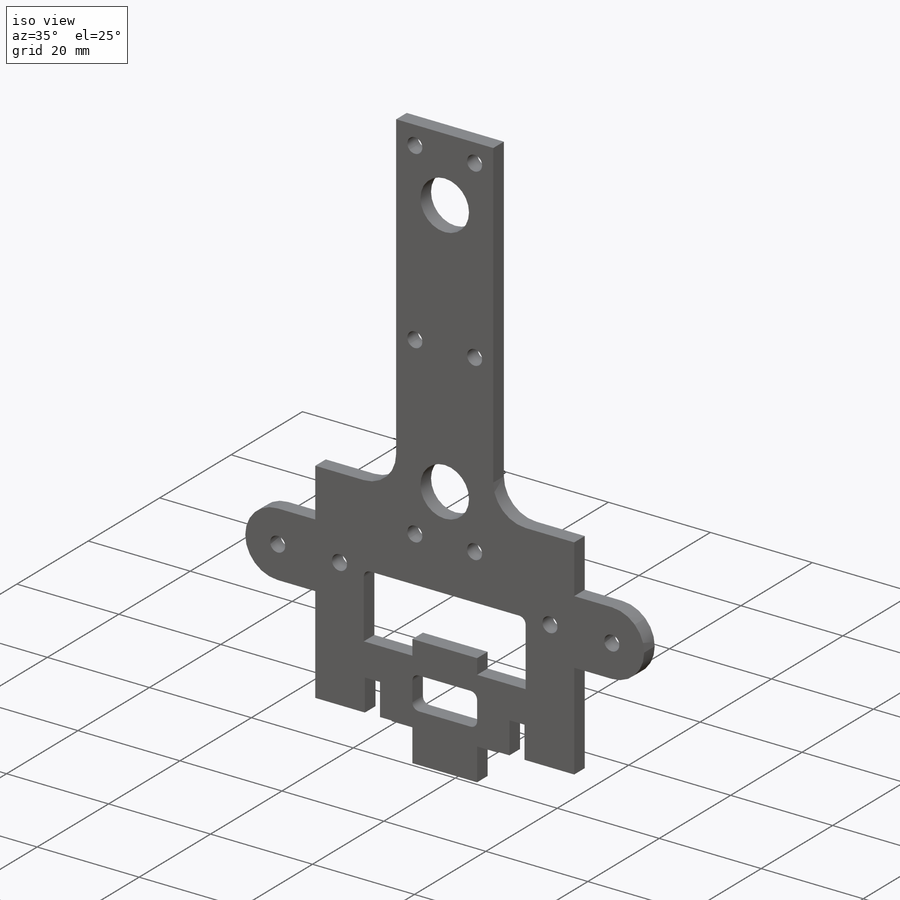
[diagram: iso view]
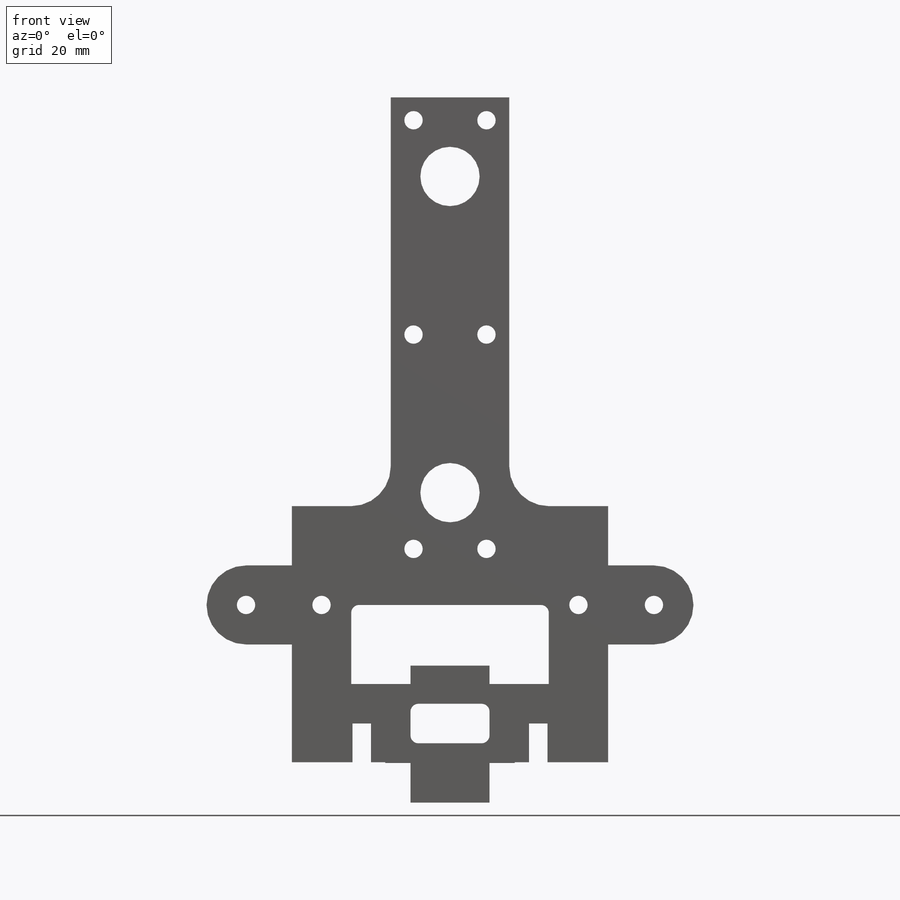
[diagram: front view]
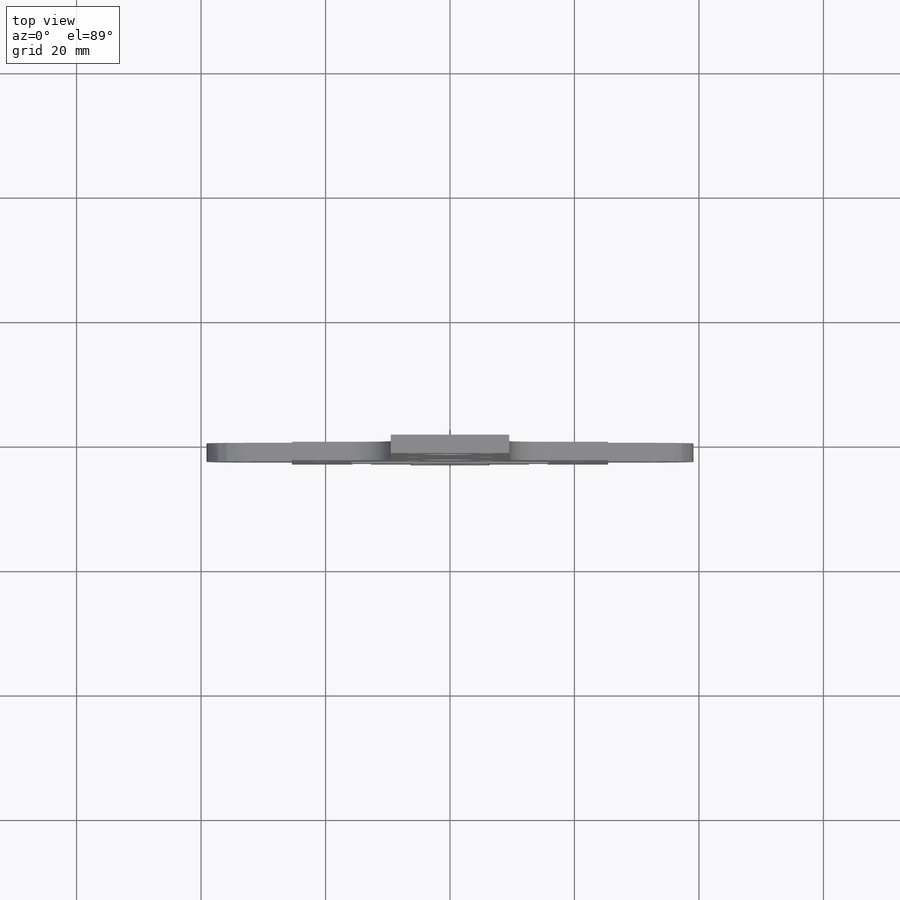
[diagram: top view]
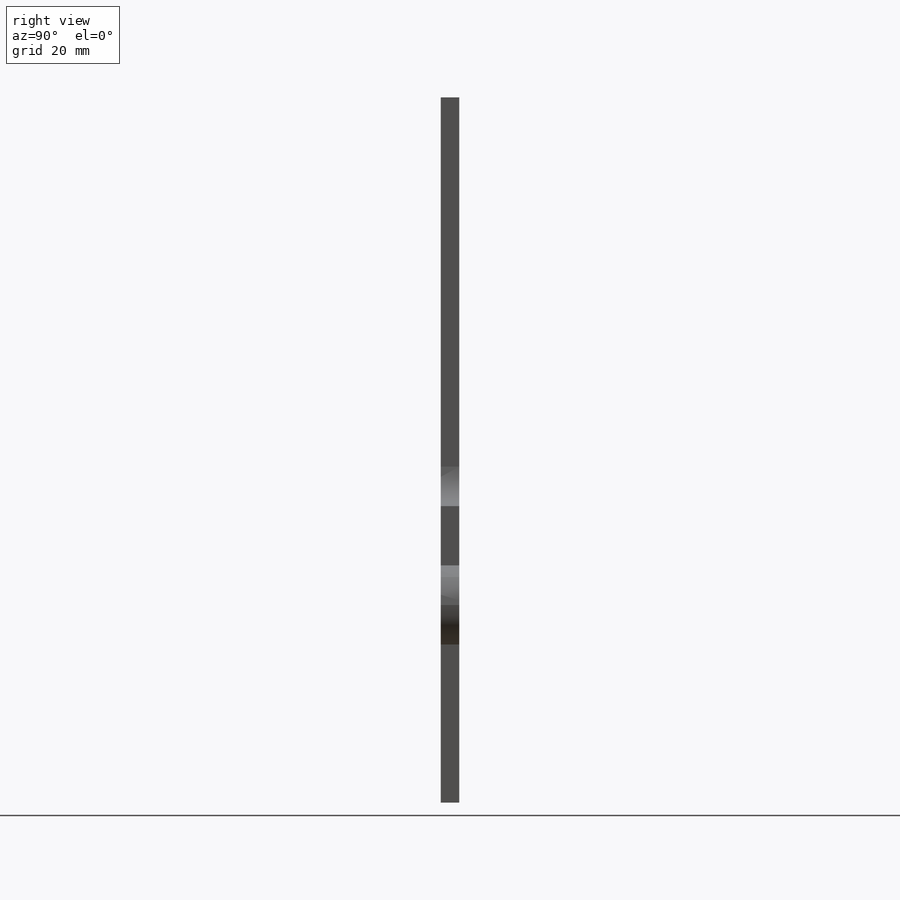
[diagram: right view]
SOLIDWORKS PART (.sldprt)
format: sldprt  version: not decoded by parser v0  size: 1,074,688 bytes
history: native  units: mm
features: sketch x18, cut_extrude x4, mirror x4, hole x4, extrude x3, fillet x3, material x1 (+12 scaffold rows collapsed)
feature tree (49):
  scaffold x12  (default folders/planes/origin — collapsed)
  material  "Material <not specified>"
  sketch  "Sketch1"  dims[c1.D1=2.9464mm c1.D7=6.35mm c1.D13=1.27mm c1.D2=65.532mm c1.D3=23.8125mm c1.D4=7.9375mm c1.D5=25.4mm c1.D6=6.35mm c2.D7=1.5875mm c2.D8=6.35mm c2.D9=31.75mm c2.D10=12.7mm c2.D3=20.6375mm c3.D9=9.525mm c3.D3=50.8mm c3.D4=12.7mm c3.D6=12.7mm c3.D10=2.9591mm c4.D3=31.75mm c4.D11=6.35mm c4.D12=12.7mm c4.D7=12.7mm]
  extrude  "Boss-Extrude1"  Depth=2.9591mm
  fillet  "Fillet1"  Radius=1.27mm
  sketch  "Sketch3"  dims[D1=2.9591mm D2=25.4mm]
  cut_extrude  "Cut-Extrude1"  [1 undecoded]
  mirror  "Mirror1"
  sketch  "Sketch4"  dims[c1.D1=2.9591mm c1.D2=19.05mm c1.D3=6.35mm c2.D2=25.4mm]
  cut_extrude  "Cut-Extrude2"  [1 undecoded]
  mirror  "Mirror2"
  sketch  "Sketch5"  dims[D1=3.9624mm D2=12.7mm D3=38.1mm]
  hole  "Tap Drill for #4 Helicoil1"  Diameter=3.9624mm Depth=3.175mm
  sketch  "Sketch7"
  sketch  "Sketch6"  dims[hole-wizard template sketch: 59 standard entries collapsed; hole parameters kept: c18.Thru Hole Dia.=3.9624mm c18.Thru Hole Depth=3.175mm]
  sketch  "Sketch10"  dims[c1.D1=6.35mm c1.D2=~17.090785mm c1.D5=6.35mm c1.D6=6.35mm c2.D2=3.175mm c2.D3=203.2mm c2.D4=31.75mm c2.D6=3.175mm c2.D7=50.8mm c2.D8=12.7mm c2.D9=9.525mm c2.D10=9.525mm]
  extrude  "Boss-Extrude5"  [1 undecoded]
  fillet  "Fillet2"  Radius=1.27mm
  fillet  "Fillet3"  Radius=6.35mm
  hole  "3/8 (0.375) Diameter Hole1"  Diameter=9.525mm Depth=6.35mm
  sketch  "Sketch16"
  sketch  "Sketch15"  dims[hole-wizard template sketch: 47 standard entries collapsed; hole parameters kept: c15.Hole Depth=6.35mm c15.D3=~14.816244mm c15.Drill Angle=118.0deg]
  sketch  "Sketch12"  dims[D1=6.35mm D2=~9.03478mm D3=~9.033826mm]
  hole  "#4 Clearance Hole1"  Diameter=2.9464mm Depth=6.35mm
  sketch  "Sketch18"
  sketch  "Sketch17"  dims[hole-wizard template sketch: 50 standard entries collapsed; hole parameters above]
  hole  "#4 Clearance Hole2"  Diameter=2.9464mm Depth=3.302mm
  sketch  "Sketch20"  dims[D1=6.35mm]
  sketch  "Sketch19"  dims[hole-wizard template sketch: 50 standard entries collapsed; hole parameters above]
  sketch  "Sketch21"  dims[D1=1.27mm]
  cut_extrude  "Cut-Extrude3"  [1 undecoded]
  sketch  "Sketch22"  dims[D2=38.1mm D1=15.875mm]
  sketch  "Sketch23"  dims[D1=0.127mm D2=0.127mm]
  cut_extrude  "Cut-Extrude4"  [1 undecoded]
  mirror  "Mirror3"
  sketch  "Sketch24"
  extrude  "Boss-Extrude6"  [1 undecoded]
  mirror  "Mirror4"
decode coverage: 22 of 36 modeling features carry decoded parameters
note: ~ marks probable driven/reference dimensions
note: 6 parameter values undecoded
summary: no parameter record found for 6 features; Diameter pulled from absorbed wizard sketch
note: suppression state not decoded; provenance and decode notes live in map.json
